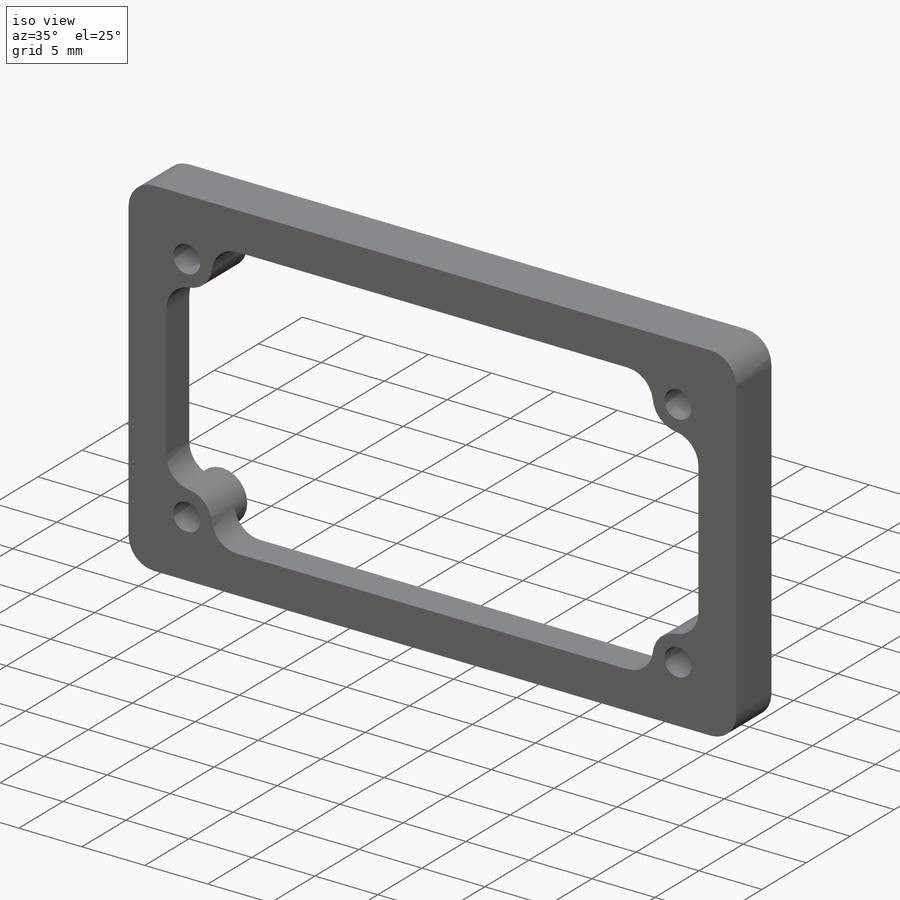
[diagram: iso view]
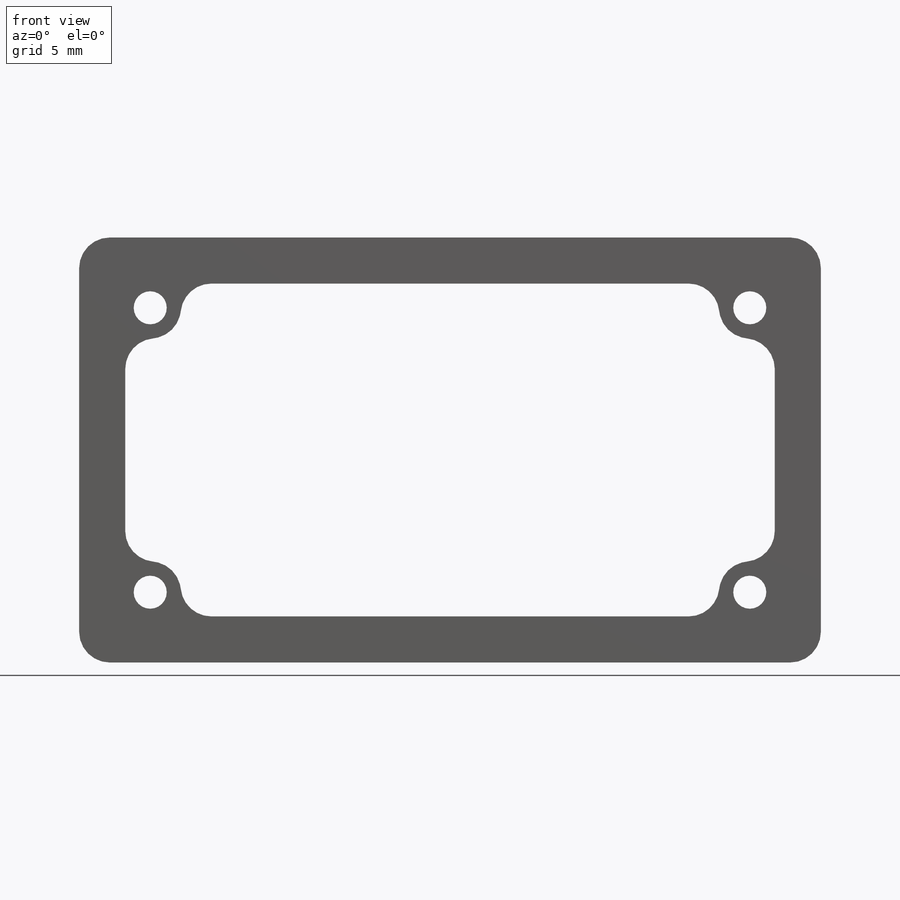
[diagram: front view]
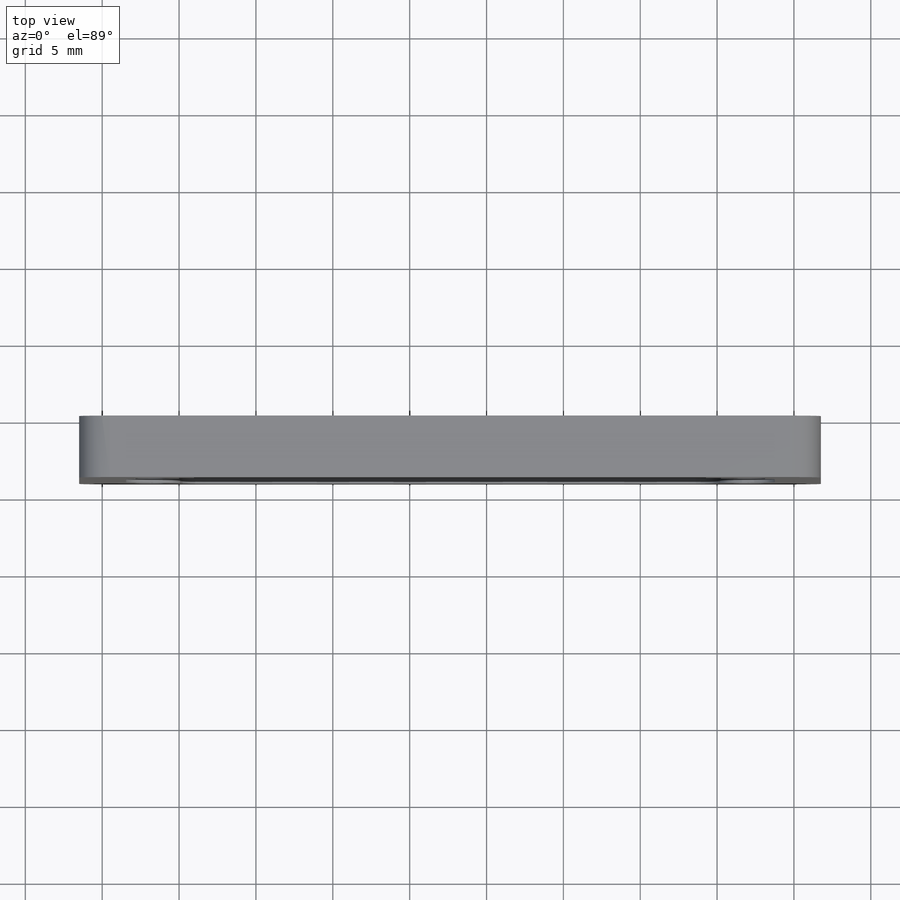
[diagram: top view]
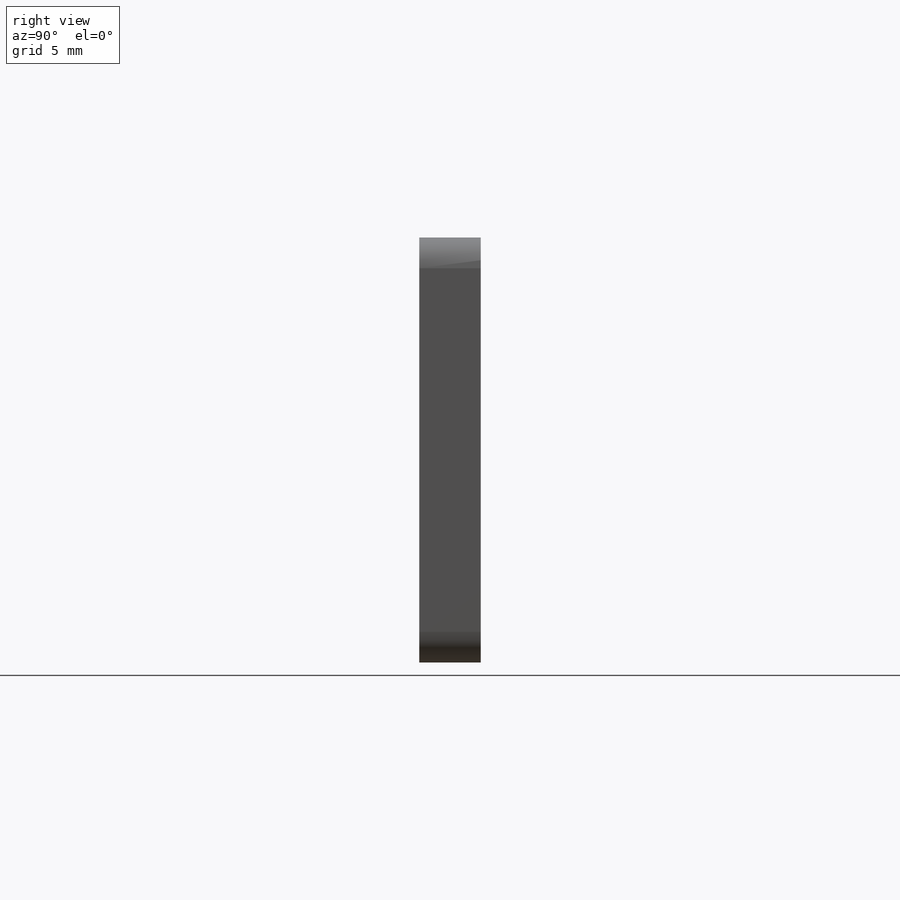
[diagram: right view]
SOLIDWORKS PART (.sldprt)
format: sldprt  version: not decoded by parser v0  size: 289,792 bytes
history: native  units: mm
features: sketch x5, extrude x3, cut_extrude x2, material x1, fillet x1 (+12 scaffold rows collapsed)
feature tree (24):
  scaffold x12  (default folders/planes/origin — collapsed)
  material  "ABS"
  sketch  "Sketch1"  dims[c1.D1=~30.540321mm c1.D2=~57.73617mm c2.D1=24.65mm c2.D2=45.25mm c2.D3=~26.619153mm c2.D4=~48.767388mm c3.D3=1.5mm]
  extrude  "Main Body"  Depth=4mm
  sketch  "Sketch3"  dims[D1=1.5mm]
  extrude  "Boss-Extrude2"  Depth=1.4mm
  sketch  "Sketch4"  dims[c1.D1=4.0mm c1.D2=4.0mm c1.D3=4.0mm c2.D1=~11.314883mm c2.D2=18.5mm c2.D3=39.0mm c2.D4=~1.011955mm c3.D2=39.0mm c3.D3=18.5mm c3.D4=2.0mm]
  extrude  "Boss-Extrude3"  [1 undecoded]
  sketch  "Sketch5"  dims[D1=2.15mm D2=2.0mm]
  cut_extrude  "Cut-Extrude1"  [1 undecoded]
  sketch  "Sketch6"
  cut_extrude  "Cut-Extrude2"  [1 undecoded]
  fillet  "Fillet1"  Radius=2mm
decode coverage: 7 of 11 modeling features carry decoded parameters
note: ~ marks probable driven/reference dimensions
note: 3 parameter values undecoded
summary: no parameter record found for 3 features
note: suppression state not decoded; provenance and decode notes live in map.json
